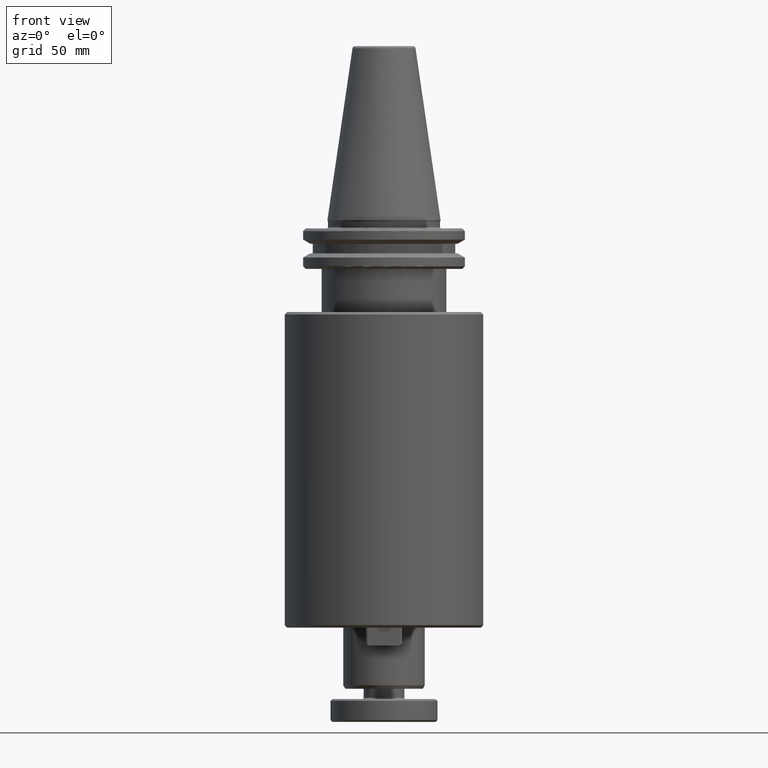
[diagram: clean part render]
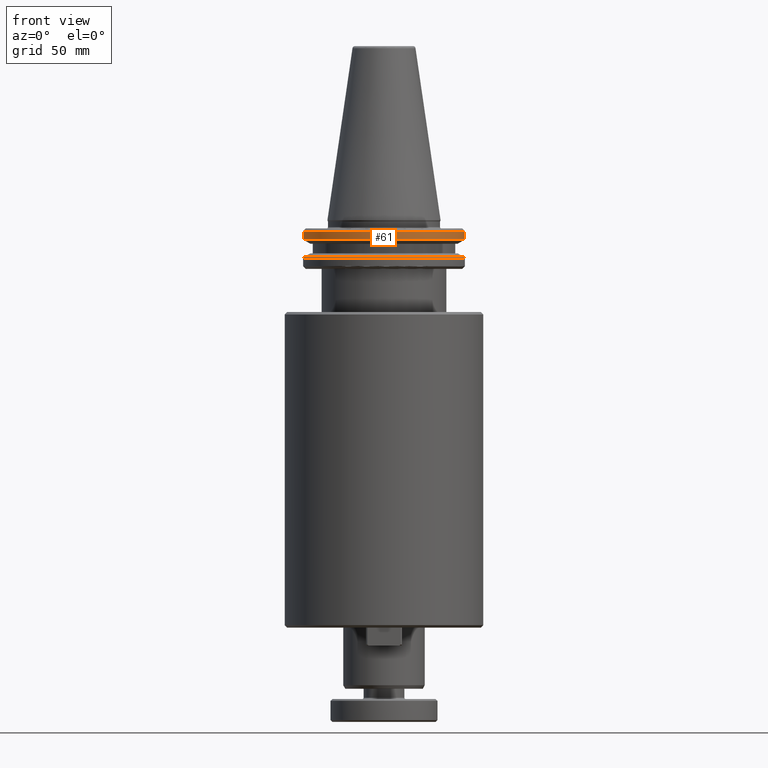
[diagram: same view with one face highlighted and labeled with its STEP entity id]
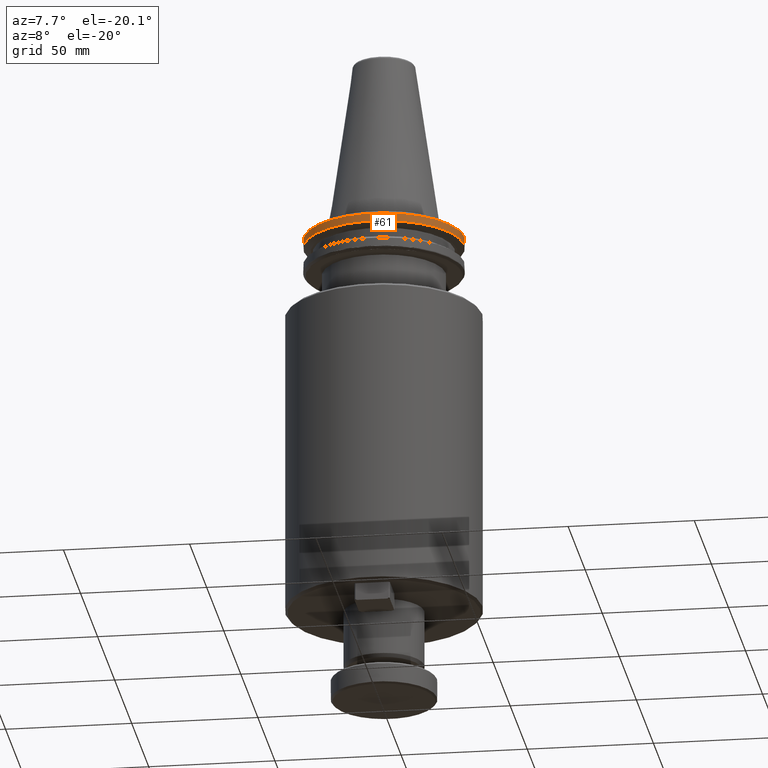
[diagram: same view with one face highlighted and labeled with its STEP entity id]
A machine part, front view. The second image highlights one B-rep face of the part: STEP entity #61.
A second angle (auxiliary view) of the same face is appended — the face is thin or edge-on in the first view.
In plain terms, the highlighted cylindrical surface (partial cylindrical patch) has radius 31.75 mm, axis along (0, 0, 1).
Its self-contained STEP definition (entity closure, byte-faithful):
#28 = DIRECTION ( 'NONE',  ( 1.000000000000000000, 0.0000000000000000000, 0.0000000000000000000 ) ) ;
#35 = EDGE_CURVE ( 'NONE', #3841, #662, #1058, .T. ) ;
#61 = ADVANCED_FACE ( 'NONE', ( #2757 ), #676, .T. ) ;
#69 = AXIS2_PLACEMENT_3D ( 'NONE', #128, #1479, #2449 ) ;
#95 = ORIENTED_EDGE ( 'NONE', *, *, #3349, .F. ) ;
#100 = VERTEX_POINT ( 'NONE', #2274 ) ;
#104 = EDGE_LOOP ( 'NONE', ( #3107, #95, #2636, #3115, #2124, #3271 ) ) ;
#112 = CARTESIAN_POINT ( 'NONE',  ( -30.52966748735167700, -8.717907037342284200, -4.365685424949306000 ) ) ;
#128 = CARTESIAN_POINT ( 'NONE',  ( 0.0000000000000000000, 0.0000000000000000000, -4.365685424949236700 ) ) ;
#145 = EDGE_CURVE ( 'NONE', #100, #2753, #4135, .T. ) ;
#196 = CARTESIAN_POINT ( 'NONE',  ( 30.56296919415017400, -8.600431037885705600, -4.365685424949306000 ) ) ;
#230 = AXIS2_PLACEMENT_3D ( 'NONE', #4202, #4116, #2034 ) ;
#381 = DIRECTION ( 'NONE',  ( 1.000000000000000000, 0.0000000000000000000, 0.0000000000000000000 ) ) ;
#662 = VERTEX_POINT ( 'NONE', #2400 ) ;
#676 = CYLINDRICAL_SURFACE ( 'NONE', #851, 31.75000000000000000 ) ;
#696 = VECTOR ( 'NONE', #1728, 1000.000000000000000 ) ;
#749 = CIRCLE ( 'NONE', #2734, 31.75000000000000000 ) ;
#792 = LINE ( 'NONE', #1715, #696 ) ;
#851 = AXIS2_PLACEMENT_3D ( 'NONE', #1950, #4223, #28 ) ;
#1058 = CIRCLE ( 'NONE', #1685, 31.75000000000000000 ) ;
#1157 = EDGE_CURVE ( 'NONE', #3984, #662, #1890, .T. ) ;
#1244 = EDGE_CURVE ( 'NONE', #3265, #100, #792, .T. ) ;
#1479 = DIRECTION ( 'NONE',  ( -0.0000000000000000000, -0.0000000000000000000, -1.000000000000000000 ) ) ;
#1685 = AXIS2_PLACEMENT_3D ( 'NONE', #3771, #3049, #381 ) ;
#1715 = CARTESIAN_POINT ( 'NONE',  ( -31.75000000000000000, 3.888253587292846500E-015, 113.5216080541959500 ) ) ;
#1728 = DIRECTION ( 'NONE',  ( 0.0000000000000000000, 0.0000000000000000000, 1.000000000000000000 ) ) ;
#1890 = LINE ( 'NONE', #2270, #3549 ) ;
#1950 = CARTESIAN_POINT ( 'NONE',  ( 0.0000000000000000000, 0.0000000000000000000, 113.5216080541959500 ) ) ;
#2034 = DIRECTION ( 'NONE',  ( 1.000000000000000000, 0.0000000000000000000, 0.0000000000000000000 ) ) ;
#2037 = CIRCLE ( 'NONE', #69, 31.75000000000000000 ) ;
#2124 = ORIENTED_EDGE ( 'NONE', *, *, #3185, .T. ) ;
#2270 = CARTESIAN_POINT ( 'NONE',  ( 31.75000000000000000, 0.0000000000000000000, 113.5216080541959500 ) ) ;
#2272 = DIRECTION ( 'NONE',  ( 0.0000000000000000000, 0.0000000000000000000, 1.000000000000000000 ) ) ;
#2274 = CARTESIAN_POINT ( 'NONE',  ( -31.75000000000000000, 3.888253587292846500E-015, -4.365685424949306000 ) ) ;
#2400 = CARTESIAN_POINT ( 'NONE',  ( 31.75000000000000000, 0.0000000000000000000, -4.365685424949306000 ) ) ;
#2449 = DIRECTION ( 'NONE',  ( 1.000000000000000000, 0.0000000000000000000, 0.0000000000000000000 ) ) ;
#2636 = ORIENTED_EDGE ( 'NONE', *, *, #1157, .T. ) ;
#2734 = AXIS2_PLACEMENT_3D ( 'NONE', #3511, #3505, #3495 ) ;
#2753 = VERTEX_POINT ( 'NONE', #112 ) ;
#2757 = FACE_OUTER_BOUND ( 'NONE', #104, .T. ) ;
#2852 = CARTESIAN_POINT ( 'NONE',  ( 31.75000000000000000, 0.0000000000000000000, -7.578163357943286500 ) ) ;
#3049 = DIRECTION ( 'NONE',  ( -0.0000000000000000000, -0.0000000000000000000, 1.000000000000000000 ) ) ;
#3107 = ORIENTED_EDGE ( 'NONE', *, *, #1244, .F. ) ;
#3115 = ORIENTED_EDGE ( 'NONE', *, *, #35, .F. ) ;
#3185 = EDGE_CURVE ( 'NONE', #3841, #2753, #2037, .T. ) ;
#3265 = VERTEX_POINT ( 'NONE', #3785 ) ;
#3271 = ORIENTED_EDGE ( 'NONE', *, *, #145, .F. ) ;
#3349 = EDGE_CURVE ( 'NONE', #3984, #3265, #749, .T. ) ;
#3495 = DIRECTION ( 'NONE',  ( 1.000000000000000000, 0.0000000000000000000, -5.463695987328526400E-017 ) ) ;
#3505 = DIRECTION ( 'NONE',  ( -0.0000000000000000000, -0.0000000000000000000, -1.000000000000000000 ) ) ;
#3511 = CARTESIAN_POINT ( 'NONE',  ( 0.0000000000000000000, 0.0000000000000000000, -7.578163357943284800 ) ) ;
#3549 = VECTOR ( 'NONE', #2272, 1000.000000000000000 ) ;
#3771 = CARTESIAN_POINT ( 'NONE',  ( 0.0000000000000000000, 0.0000000000000000000, -4.365685424949306000 ) ) ;
#3785 = CARTESIAN_POINT ( 'NONE',  ( -31.75000000000000000, 3.888253587292846500E-015, -7.578163357943284800 ) ) ;
#3841 = VERTEX_POINT ( 'NONE', #196 ) ;
#3984 = VERTEX_POINT ( 'NONE', #2852 ) ;
#4116 = DIRECTION ( 'NONE',  ( -0.0000000000000000000, -0.0000000000000000000, 1.000000000000000000 ) ) ;
#4135 = CIRCLE ( 'NONE', #230, 31.75000000000000000 ) ;
#4202 = CARTESIAN_POINT ( 'NONE',  ( 0.0000000000000000000, 0.0000000000000000000, -4.365685424949306000 ) ) ;
#4223 = DIRECTION ( 'NONE',  ( 0.0000000000000000000, 0.0000000000000000000, 1.000000000000000000 ) ) ;